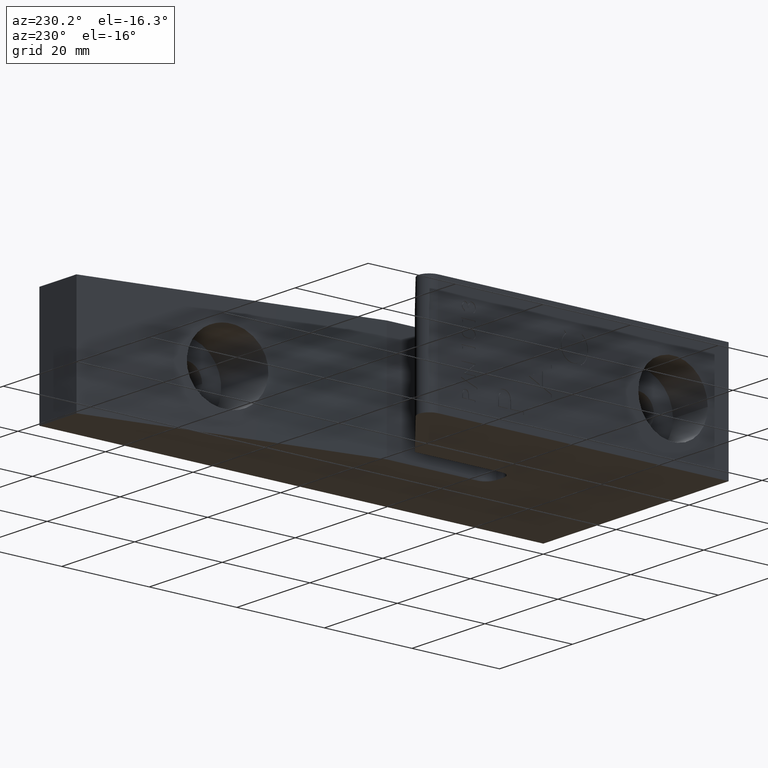
[diagram: clean part render]
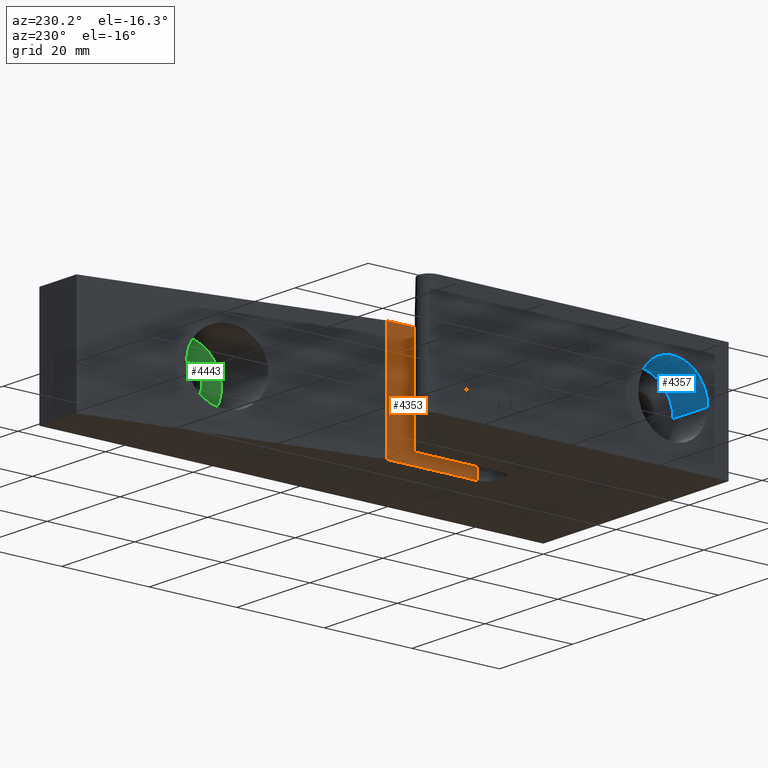
[diagram: same view with three faces highlighted in distinct colors, each labeled with its STEP entity id]
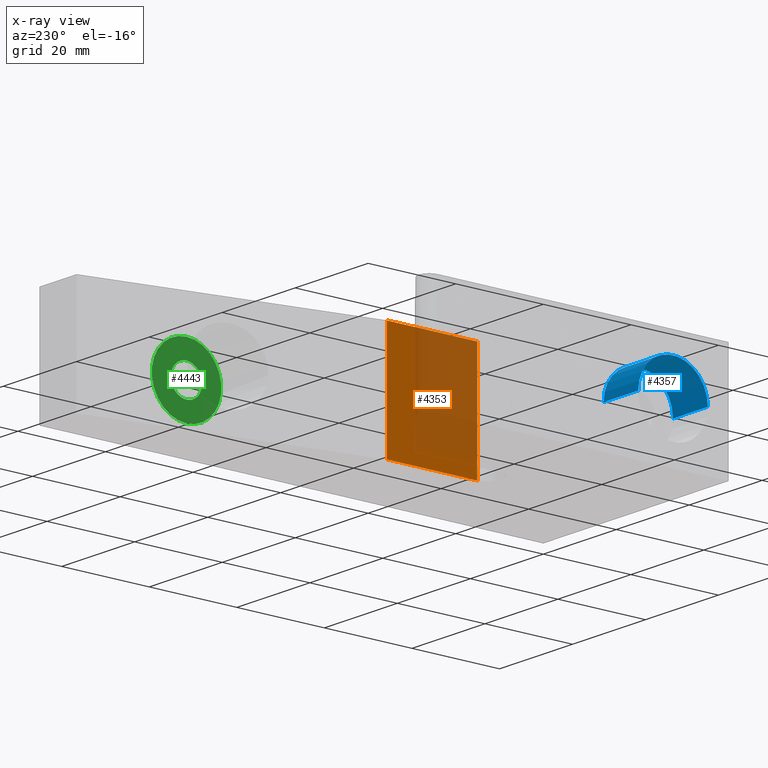
[diagram: x-ray of the same camera — body ghosted, the three highlighted faces saturated]
A machine part, auxiliary view with three faces highlighted in distinct colors.
The next image is the same camera in x-ray (body ghosted, the three faces saturated) — at least one of them is partly hidden behind the body in this view.
Their STEP definitions:

[orange] entity #4353 — the highlighted planar face has unit normal (1, 0, -0).
#575 = EDGE_CURVE ( 'NONE', #5868, #5357, #6628, .T. ) ;
#619 = EDGE_CURVE ( 'NONE', #5317, #5833, #4785, .T. ) ;
#915 = FACE_OUTER_BOUND ( 'NONE', #6698, .T. ) ;
#918 = LINE ( 'NONE', #7986, #3136 ) ;
#1419 = CARTESIAN_POINT ( 'NONE',  ( -0.8999999999999998000, 2.156250000000000000, 0.5000000000000000000 ) ) ;
#1448 = PLANE ( 'NONE',  #3769 ) ;
#1678 = DIRECTION ( 'NONE',  ( 1.507226479263041800E-016, -1.000000000000000000, 0.0000000000000000000 ) ) ;
#1679 = CARTESIAN_POINT ( 'NONE',  ( -0.8999999999999998000, 2.156250000000000000, -0.5000000000000000000 ) ) ;
#2120 = DIRECTION ( 'NONE',  ( 1.507226479263041800E-016, -1.000000000000000000, 0.0000000000000000000 ) ) ;
#2123 = CARTESIAN_POINT ( 'NONE',  ( -0.8999999999999998000, 2.156250000000000000, 0.5000000000000000000 ) ) ;
#2422 = DIRECTION ( 'NONE',  ( -1.507226479263041800E-016, 1.000000000000000000, 0.0000000000000000000 ) ) ;
#2457 = DIRECTION ( 'NONE',  ( 1.000000000000000000, 1.507226479263041800E-016, -0.0000000000000000000 ) ) ;
#3136 = VECTOR ( 'NONE', #7987, 39.37007874015748100 ) ;
#3139 = LINE ( 'NONE', #8003, #3140 ) ;
#3140 = VECTOR ( 'NONE', #8004, 39.37007874015748100 ) ;
#3769 = AXIS2_PLACEMENT_3D ( 'NONE', #1419, #2457, #2422 ) ;
#4353 = ADVANCED_FACE ( 'NONE', ( #915 ), #1448, .F. ) ;
#4740 = ORIENTED_EDGE ( 'NONE', *, *, #5042, .T. ) ;
#4741 = ORIENTED_EDGE ( 'NONE', *, *, #575, .F. ) ;
#4785 = LINE ( 'NONE', #1679, #4786 ) ;
#4786 = VECTOR ( 'NONE', #1678, 39.37007874015748100 ) ;
#4967 = ORIENTED_EDGE ( 'NONE', *, *, #619, .T. ) ;
#4968 = ORIENTED_EDGE ( 'NONE', *, *, #5046, .T. ) ;
#5042 = EDGE_CURVE ( 'NONE', #5868, #5317, #918, .T. ) ;
#5046 = EDGE_CURVE ( 'NONE', #5833, #5357, #3139, .T. ) ;
#5317 = VERTEX_POINT ( 'NONE', #8237 ) ;
#5357 = VERTEX_POINT ( 'NONE', #8240 ) ;
#5833 = VERTEX_POINT ( 'NONE', #8353 ) ;
#5868 = VERTEX_POINT ( 'NONE', #8380 ) ;
#6628 = LINE ( 'NONE', #2123, #6629 ) ;
#6629 = VECTOR ( 'NONE', #2120, 39.37007874015748100 ) ;
#6698 = EDGE_LOOP ( 'NONE', ( #4967, #4968, #4741, #4740 ) ) ;
#7986 = CARTESIAN_POINT ( 'NONE',  ( -0.8999999999999998000, 2.156250000000000000, 0.5000000000000000000 ) ) ;
#7987 = DIRECTION ( 'NONE',  ( -0.0000000000000000000, -0.0000000000000000000, -1.000000000000000000 ) ) ;
#8003 = CARTESIAN_POINT ( 'NONE',  ( -0.8999999999999996900, 1.343750000000000200, 0.5000000000000000000 ) ) ;
#8004 = DIRECTION ( 'NONE',  ( -0.0000000000000000000, -0.0000000000000000000, 1.000000000000000000 ) ) ;
#8237 = CARTESIAN_POINT ( 'NONE',  ( -0.8999999999999998000, 2.156250000000000000, -0.5000000000000000000 ) ) ;
#8240 = CARTESIAN_POINT ( 'NONE',  ( -0.8999999999999996900, 1.343750000000000200, 0.5000000000000000000 ) ) ;
#8353 = CARTESIAN_POINT ( 'NONE',  ( -0.8999999999999996900, 1.343750000000000200, -0.5000000000000000000 ) ) ;
#8380 = CARTESIAN_POINT ( 'NONE',  ( -0.8999999999999998000, 2.156250000000000000, 0.5000000000000000000 ) ) ;

[blue] entity #4357 — the highlighted cylindrical surface (partial cylindrical patch) has radius 7.9375 mm, axis along (-1, -0, -0).
#260 = EDGE_CURVE ( 'NONE', #5412, #5623, #988, .T. ) ;
#284 = EDGE_CURVE ( 'NONE', #5623, #6040, #6822, .T. ) ;
#295 = EDGE_CURVE ( 'NONE', #5705, #6040, #6832, .T. ) ;
#594 = EDGE_CURVE ( 'NONE', #5412, #5705, #6651, .T. ) ;
#914 = FACE_OUTER_BOUND ( 'NONE', #5149, .T. ) ;
#980 = VECTOR ( 'NONE', #5708, 39.37007874015748100 ) ;
#988 = LINE ( 'NONE', #5714, #980 ) ;
#1973 = DIRECTION ( 'NONE',  ( 0.0000000000000000000, -1.000000000000000000, 0.0000000000000000000 ) ) ;
#2024 = DIRECTION ( 'NONE',  ( -1.000000000000000000, -9.713237310806269200E-017, 0.0000000000000000000 ) ) ;
#2049 = CARTESIAN_POINT ( 'NONE',  ( -1.625000000000000000, 0.4999999999999998300, 0.0000000000000000000 ) ) ;
#2527 = DIRECTION ( 'NONE',  ( 0.0000000000000000000, -1.000000000000000000, 0.0000000000000000000 ) ) ;
#2529 = DIRECTION ( 'NONE',  ( -1.000000000000000000, -9.713237310806270500E-017, -0.0000000000000000000 ) ) ;
#2530 = CARTESIAN_POINT ( 'NONE',  ( -1.625000000000000000, 0.4999999999999998300, 0.0000000000000000000 ) ) ;
#3753 = AXIS2_PLACEMENT_3D ( 'NONE', #6201, #5613, #6207 ) ;
#3765 = AXIS2_PLACEMENT_3D ( 'NONE', #2049, #2024, #1973 ) ;
#3775 = AXIS2_PLACEMENT_3D ( 'NONE', #2530, #2529, #2527 ) ;
#4357 = ADVANCED_FACE ( 'NONE', ( #914 ), #4492, .F. ) ;
#4492 = CYLINDRICAL_SURFACE ( 'NONE', #3775, 0.3125000000000000000 ) ;
#4680 = ORIENTED_EDGE ( 'NONE', *, *, #284, .T. ) ;
#4681 = ORIENTED_EDGE ( 'NONE', *, *, #260, .T. ) ;
#4682 = ORIENTED_EDGE ( 'NONE', *, *, #594, .F. ) ;
#4683 = ORIENTED_EDGE ( 'NONE', *, *, #295, .F. ) ;
#5149 = EDGE_LOOP ( 'NONE', ( #4683, #4682, #4681, #4680 ) ) ;
#5412 = VERTEX_POINT ( 'NONE', #8255 ) ;
#5613 = DIRECTION ( 'NONE',  ( -1.000000000000000000, -9.713237310806269200E-017, 0.0000000000000000000 ) ) ;
#5623 = VERTEX_POINT ( 'NONE', #8280 ) ;
#5705 = VERTEX_POINT ( 'NONE', #8298 ) ;
#5708 = DIRECTION ( 'NONE',  ( -1.000000000000000000, -9.713237310806269200E-017, -0.0000000000000000000 ) ) ;
#5714 = CARTESIAN_POINT ( 'NONE',  ( -1.625000000000000000, 0.1874999999999998300, 0.0000000000000000000 ) ) ;
#5995 = DIRECTION ( 'NONE',  ( -1.000000000000000000, -9.713237310806269200E-017, -0.0000000000000000000 ) ) ;
#6039 = CARTESIAN_POINT ( 'NONE',  ( -1.625000000000000000, 0.8124999999999998900, 3.827021247335477700E-017 ) ) ;
#6040 = VERTEX_POINT ( 'NONE', #8396 ) ;
#6201 = CARTESIAN_POINT ( 'NONE',  ( -2.000000000000000000, 0.4999999999999997800, 0.0000000000000000000 ) ) ;
#6207 = DIRECTION ( 'NONE',  ( 0.0000000000000000000, -1.000000000000000000, 0.0000000000000000000 ) ) ;
#6651 = CIRCLE ( 'NONE', #3765, 0.3125000000000000000 ) ;
#6822 = CIRCLE ( 'NONE', #3753, 0.3125000000000000000 ) ;
#6830 = VECTOR ( 'NONE', #5995, 39.37007874015748100 ) ;
#6832 = LINE ( 'NONE', #6039, #6830 ) ;
#8255 = CARTESIAN_POINT ( 'NONE',  ( -1.625000000000000000, 0.1874999999999998300, 0.0000000000000000000 ) ) ;
#8280 = CARTESIAN_POINT ( 'NONE',  ( -2.000000000000000000, 0.1874999999999997800, 0.0000000000000000000 ) ) ;
#8298 = CARTESIAN_POINT ( 'NONE',  ( -1.625000000000000000, 0.8124999999999998900, 3.827021247335477700E-017 ) ) ;
#8396 = CARTESIAN_POINT ( 'NONE',  ( -2.000000000000000000, 0.8124999999999998900, 3.827021247335477100E-017 ) ) ;

[green] entity #4443 — the highlighted planar face has unit normal (1, 0, 0).
#287 = EDGE_CURVE ( 'NONE', #5806, #6067, #6827, .T. ) ;
#319 = EDGE_CURVE ( 'NONE', #5790, #5801, #6857, .T. ) ;
#832 = EDGE_LOOP ( 'NONE', ( #4675, #4674 ) ) ;
#833 = EDGE_LOOP ( 'NONE', ( #4673, #4672 ) ) ;
#1833 = DIRECTION ( 'NONE',  ( 0.0000000000000000000, 0.0000000000000000000, -1.000000000000000000 ) ) ;
#1835 = DIRECTION ( 'NONE',  ( -1.000000000000000000, -0.0000000000000000000, -0.0000000000000000000 ) ) ;
#1836 = CARTESIAN_POINT ( 'NONE',  ( -0.2000000000000000100, 3.375000000000000000, 0.0000000000000000000 ) ) ;
#2336 = AXIS2_PLACEMENT_3D ( 'NONE', #4303, #4302, #4301 ) ;
#2377 = AXIS2_PLACEMENT_3D ( 'NONE', #7905, #7991, #7992 ) ;
#3141 = CIRCLE ( 'NONE', #2377, 0.1406249999999999200 ) ;
#3181 = CIRCLE ( 'NONE', #5237, 0.3125000000000000600 ) ;
#3757 = AXIS2_PLACEMENT_3D ( 'NONE', #6007, #6006, #6208 ) ;
#3759 = AXIS2_PLACEMENT_3D ( 'NONE', #1836, #1835, #1833 ) ;
#4301 = DIRECTION ( 'NONE',  ( 0.0000000000000000000, 0.0000000000000000000, -1.000000000000000000 ) ) ;
#4302 = DIRECTION ( 'NONE',  ( 1.000000000000000000, 0.0000000000000000000, 0.0000000000000000000 ) ) ;
#4303 = CARTESIAN_POINT ( 'NONE',  ( -0.2000000000000000100, 3.375000000000000000, 0.0000000000000000000 ) ) ;
#4305 = PLANE ( 'NONE',  #2336 ) ;
#4443 = ADVANCED_FACE ( 'NONE', ( #4598, #4596 ), #4305, .F. ) ;
#4596 = FACE_BOUND ( 'NONE', #833, .T. ) ;
#4598 = FACE_OUTER_BOUND ( 'NONE', #832, .T. ) ;
#4672 = ORIENTED_EDGE ( 'NONE', *, *, #319, .F. ) ;
#4673 = ORIENTED_EDGE ( 'NONE', *, *, #5044, .F. ) ;
#4674 = ORIENTED_EDGE ( 'NONE', *, *, #287, .F. ) ;
#4675 = ORIENTED_EDGE ( 'NONE', *, *, #5068, .F. ) ;
#5044 = EDGE_CURVE ( 'NONE', #5801, #5790, #3141, .T. ) ;
#5068 = EDGE_CURVE ( 'NONE', #6067, #5806, #3181, .T. ) ;
#5237 = AXIS2_PLACEMENT_3D ( 'NONE', #8090, #8101, #8102 ) ;
#5790 = VERTEX_POINT ( 'NONE', #8322 ) ;
#5801 = VERTEX_POINT ( 'NONE', #8330 ) ;
#5806 = VERTEX_POINT ( 'NONE', #8333 ) ;
#6006 = DIRECTION ( 'NONE',  ( 1.000000000000000000, 0.0000000000000000000, 0.0000000000000000000 ) ) ;
#6007 = CARTESIAN_POINT ( 'NONE',  ( -0.2000000000000000100, 3.375000000000000000, 0.0000000000000000000 ) ) ;
#6067 = VERTEX_POINT ( 'NONE', #8399 ) ;
#6208 = DIRECTION ( 'NONE',  ( 0.0000000000000000000, 0.0000000000000000000, -1.000000000000000000 ) ) ;
#6827 = CIRCLE ( 'NONE', #3757, 0.3125000000000000600 ) ;
#6857 = CIRCLE ( 'NONE', #3759, 0.1406249999999999200 ) ;
#7905 = CARTESIAN_POINT ( 'NONE',  ( -0.2000000000000000100, 3.375000000000000000, 0.0000000000000000000 ) ) ;
#7991 = DIRECTION ( 'NONE',  ( -1.000000000000000000, -0.0000000000000000000, -0.0000000000000000000 ) ) ;
#7992 = DIRECTION ( 'NONE',  ( 0.0000000000000000000, 0.0000000000000000000, -1.000000000000000000 ) ) ;
#8090 = CARTESIAN_POINT ( 'NONE',  ( -0.2000000000000000100, 3.375000000000000000, 0.0000000000000000000 ) ) ;
#8101 = DIRECTION ( 'NONE',  ( 1.000000000000000000, 0.0000000000000000000, 0.0000000000000000000 ) ) ;
#8102 = DIRECTION ( 'NONE',  ( 0.0000000000000000000, 0.0000000000000000000, -1.000000000000000000 ) ) ;
#8322 = CARTESIAN_POINT ( 'NONE',  ( -0.2000000000000000100, 3.515625000000000000, 1.722159561300961800E-017 ) ) ;
#8330 = CARTESIAN_POINT ( 'NONE',  ( -0.2000000000000000100, 3.234375000000000000, 0.0000000000000000000 ) ) ;
#8333 = CARTESIAN_POINT ( 'NONE',  ( -0.2000000000000000100, 3.375000000000000000, 0.3125000000000000600 ) ) ;
#8399 = CARTESIAN_POINT ( 'NONE',  ( -0.2000000000000000100, 3.375000000000000000, -0.3125000000000000600 ) ) ;